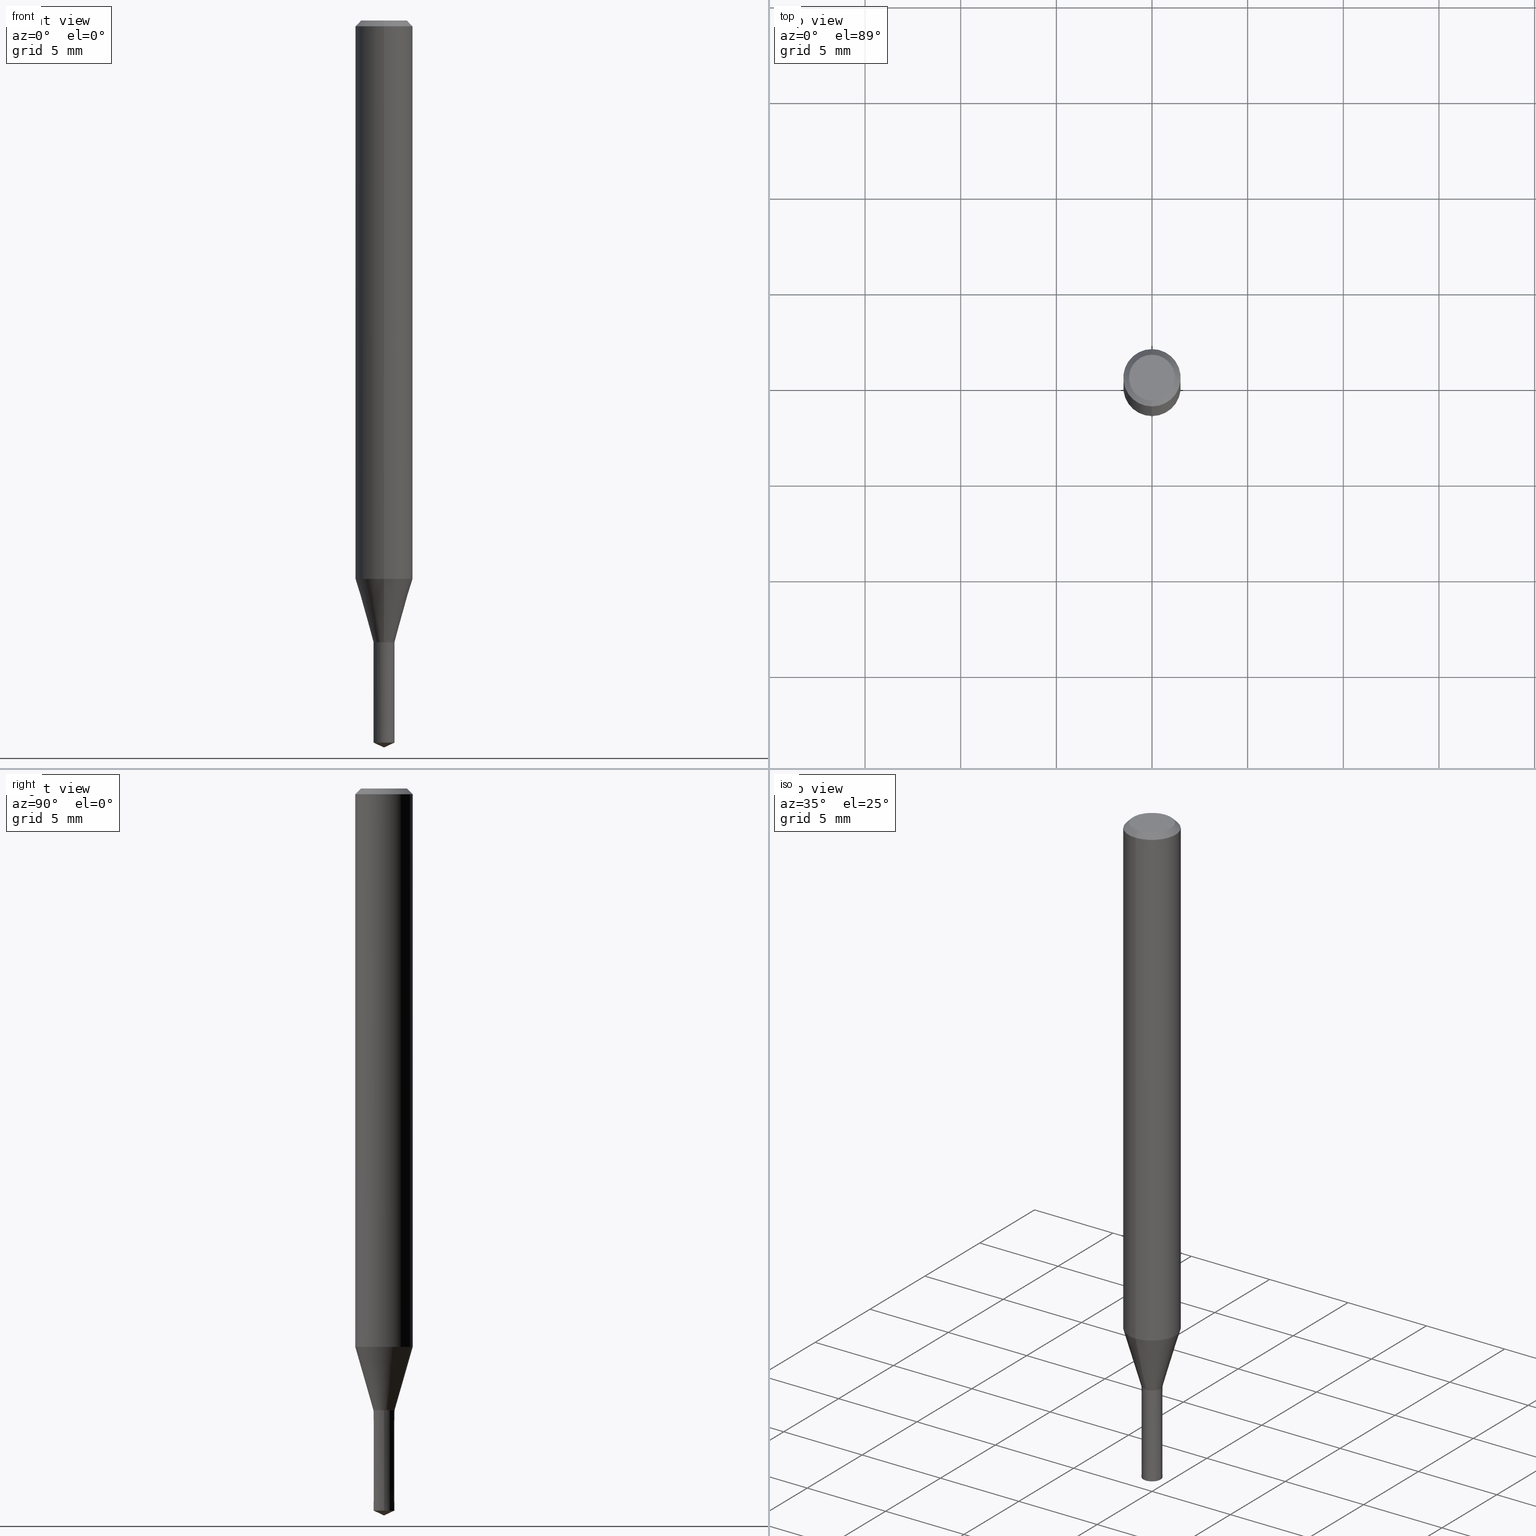
[diagram: canonical four-view strip — front | top / right | iso, engineering-drawing reading convention]
A machine part, canonical four-view strip (front | top / right | iso — engineering-drawing reading convention). The complete STEP part file that produces these views, byte-faithful:
ISO-10303-21;
HEADER;
FILE_DESCRIPTION(('no description'),'unknown implementation level');
FILE_NAME('UTDSX2110-055-Huellk.stp','  ',('CIMSOURCE GmbH'),('CADClick - KiM GmbH - www.kimweb.de'),'unknown preprocess','ACIS','unknown authorization');
FILE_SCHEMA(('automotive_design'));
ENDSEC;
DATA;
#1=MECHANICAL_DESIGN_GEOMETRIC_PRESENTATION_REPRESENTATION(' ',(#14,#15,#16,#17,#18,#19,#20,#21,#22,#23,#24,#25,#26,#27,#28,#29,#30,#31,#32,#33,#34,#35,#36,#37,#38,#39,#40,#41,#42,#43,#44,#45,#46,#47,#48,#49,#50,#51,#52,#53,#54,#55,#56,#57,#58,#59,#60,#61,#62,#63,#64,#65,#66,#67,#68,#69,#70,#71),#10);
#2=PRODUCT_DEFINITION_CONTEXT('',#72,'design');
#3=APPLICATION_PROTOCOL_DEFINITION('INTERNATIONAL STANDARD','automotive_design',1994,#72);
#4=PRODUCT_CATEGORY_RELATIONSHIP('NONE','NONE',#73,#74);
#5=SHAPE_DEFINITION_REPRESENTATION(#75,#76);
#6=PRODUCT_DEFINITION_CONTEXT('',#77,'design');
#7=APPLICATION_PROTOCOL_DEFINITION('INTERNATIONAL STANDARD','automotive_design',1994,#77);
#8=PRODUCT_CATEGORY_RELATIONSHIP('NONE','NONE',#78,#79);
#9=SHAPE_DEFINITION_REPRESENTATION(#80,#81);
#10= (GEOMETRIC_REPRESENTATION_CONTEXT(3)GLOBAL_UNCERTAINTY_ASSIGNED_CONTEXT((#84))GLOBAL_UNIT_ASSIGNED_CONTEXT((#86,#87,#88))REPRESENTATION_CONTEXT('NONE','WORKSPACE'));
#14=STYLED_ITEM('',(#90),#91);
#15=STYLED_ITEM('',(#92),#93);
#16=STYLED_ITEM('',(#94),#95);
#17=STYLED_ITEM('',(#96),#97);
#18=STYLED_ITEM('',(#98),#99);
#19=STYLED_ITEM('',(#100),#101);
#20=STYLED_ITEM('',(#102),#103);
#21=STYLED_ITEM('',(#104),#105);
#22=STYLED_ITEM('',(#106),#107);
#23=STYLED_ITEM('',(#108),#109);
#24=STYLED_ITEM('',(#110),#111);
#25=STYLED_ITEM('',(#112),#113);
#26=STYLED_ITEM('',(#114),#115);
#27=STYLED_ITEM('',(#116),#117);
#28=STYLED_ITEM('',(#118),#119);
#29=STYLED_ITEM('',(#120),#121);
#30=STYLED_ITEM('',(#122),#123);
#31=STYLED_ITEM('',(#124),#125);
#32=STYLED_ITEM('',(#126),#127);
#33=STYLED_ITEM('',(#128),#129);
#34=STYLED_ITEM('',(#130),#131);
#35=STYLED_ITEM('',(#132),#133);
#36=STYLED_ITEM('',(#134),#135);
#37=STYLED_ITEM('',(#136),#137);
#38=STYLED_ITEM('',(#138),#139);
#39=STYLED_ITEM('',(#140),#141);
#40=STYLED_ITEM('',(#142),#143);
#41=STYLED_ITEM('',(#144),#145);
#42=STYLED_ITEM('',(#146),#147);
#43=STYLED_ITEM('',(#148),#149);
#44=STYLED_ITEM('',(#150),#151);
#45=STYLED_ITEM('',(#152),#153);
#46=STYLED_ITEM('',(#154),#155);
#47=STYLED_ITEM('',(#156),#157);
#48=STYLED_ITEM('',(#158),#159);
#49=STYLED_ITEM('',(#160),#161);
#50=STYLED_ITEM('',(#162),#163);
#51=STYLED_ITEM('',(#164),#165);
#52=STYLED_ITEM('',(#166),#167);
#53=STYLED_ITEM('',(#168),#169);
#54=STYLED_ITEM('',(#170),#171);
#55=STYLED_ITEM('',(#172),#173);
#56=STYLED_ITEM('',(#174),#175);
#57=STYLED_ITEM('',(#176),#177);
#58=STYLED_ITEM('',(#178),#179);
#59=STYLED_ITEM('',(#180),#181);
#60=STYLED_ITEM('',(#182),#183);
#61=STYLED_ITEM('',(#184),#185);
#62=STYLED_ITEM('',(#186),#187);
#63=STYLED_ITEM('',(#188),#189);
#64=STYLED_ITEM('',(#190),#191);
#65=STYLED_ITEM('',(#192),#193);
#66=STYLED_ITEM('',(#194),#195);
#67=STYLED_ITEM('',(#196),#197);
#68=STYLED_ITEM('',(#198),#199);
#69=STYLED_ITEM('',(#200),#201);
#70=STYLED_ITEM('',(#202),#203);
#71=STYLED_ITEM('',(#204),#205);
#72=APPLICATION_CONTEXT(' ');
#73=PRODUCT_CATEGORY('part','NONE');
#74=PRODUCT_RELATED_PRODUCT_CATEGORY('detail',' ',(#206));
#75=PRODUCT_DEFINITION_SHAPE('NONE','NONE',#207);
#76=ADVANCED_BREP_SHAPE_REPRESENTATION('1',(#163,#208),#10);
#77=APPLICATION_CONTEXT(' ');
#78=PRODUCT_CATEGORY('part','NONE');
#79=PRODUCT_RELATED_PRODUCT_CATEGORY('detail',' ',(#209));
#80=PRODUCT_DEFINITION_SHAPE('NONE','NONE',#210);
#81=ADVANCED_BREP_SHAPE_REPRESENTATION('2',(#179,#211),#10);
#84=UNCERTAINTY_MEASURE_WITH_UNIT(LENGTH_MEASURE(1.0E-006),#86,'','');
#86= (CONVERSION_BASED_UNIT('MILLIMETRE',#214)LENGTH_UNIT()NAMED_UNIT(#217));
#87= (NAMED_UNIT(#219)PLANE_ANGLE_UNIT()SI_UNIT($,.RADIAN.));
#88= (NAMED_UNIT(#219)SOLID_ANGLE_UNIT()SI_UNIT($,.STERADIAN.));
#90=PRESENTATION_STYLE_ASSIGNMENT((#225));
#91=ADVANCED_FACE('',(#226),#227,.T.);
#92=PRESENTATION_STYLE_ASSIGNMENT((#228));
#93=EDGE_CURVE('',#201,#127,#229,.T.);
#94=PRESENTATION_STYLE_ASSIGNMENT((#230));
#95=VERTEX_POINT('',#231);
#96=PRESENTATION_STYLE_ASSIGNMENT((#232));
#97=VERTEX_POINT('',#233);
#98=PRESENTATION_STYLE_ASSIGNMENT((#234));
#99=VERTEX_POINT('',#235);
#100=PRESENTATION_STYLE_ASSIGNMENT((#236));
#101=ADVANCED_FACE('',(#237),#238,.T.);
#102=PRESENTATION_STYLE_ASSIGNMENT((#239));
#103=EDGE_CURVE('',#175,#123,#240,.T.);
#104=PRESENTATION_STYLE_ASSIGNMENT((#241));
#105=EDGE_CURVE('',#117,#153,#242,.T.);
#106=PRESENTATION_STYLE_ASSIGNMENT((#243));
#107=EDGE_CURVE('',#201,#99,#244,.T.);
#108=PRESENTATION_STYLE_ASSIGNMENT((#245));
#109=ADVANCED_FACE('',(#246),#247,.T.);
#110=PRESENTATION_STYLE_ASSIGNMENT((#248));
#111=VERTEX_POINT('',#249);
#112=PRESENTATION_STYLE_ASSIGNMENT((#250));
#113=ADVANCED_FACE('',(#251),#252,.T.);
#114=PRESENTATION_STYLE_ASSIGNMENT((#253));
#115=EDGE_CURVE('',#185,#149,#254,.T.);
#116=PRESENTATION_STYLE_ASSIGNMENT((#255));
#117=VERTEX_POINT('',#256);
#118=PRESENTATION_STYLE_ASSIGNMENT((#257));
#119=EDGE_CURVE('',#97,#127,#258,.T.);
#120=PRESENTATION_STYLE_ASSIGNMENT((#259));
#121=ADVANCED_FACE('',(#260),#261,.T.);
#122=PRESENTATION_STYLE_ASSIGNMENT((#262));
#123=VERTEX_POINT('',#263);
#124=PRESENTATION_STYLE_ASSIGNMENT((#264));
#125=EDGE_CURVE('',#153,#95,#265,.T.);
#126=PRESENTATION_STYLE_ASSIGNMENT((#266));
#127=VERTEX_POINT('',#267);
#128=PRESENTATION_STYLE_ASSIGNMENT((#268));
#129=ADVANCED_FACE('',(#269),#270,.T.);
#130=PRESENTATION_STYLE_ASSIGNMENT((#271));
#131=VERTEX_POINT('',#272);
#132=PRESENTATION_STYLE_ASSIGNMENT((#273));
#133=ADVANCED_FACE('',(#274),#275,.T.);
#134=PRESENTATION_STYLE_ASSIGNMENT((#276));
#135=ADVANCED_FACE('',(#277),#278,.T.);
#136=PRESENTATION_STYLE_ASSIGNMENT((#279));
#137=ADVANCED_FACE('',(#280),#281,.T.);
#138=PRESENTATION_STYLE_ASSIGNMENT((#282));
#139=VERTEX_POINT('',#283);
#140=PRESENTATION_STYLE_ASSIGNMENT((#284));
#141=EDGE_CURVE('',#99,#201,#285,.T.);
#142=PRESENTATION_STYLE_ASSIGNMENT((#286));
#143=EDGE_CURVE('',#145,#111,#287,.T.);
#144=PRESENTATION_STYLE_ASSIGNMENT((#288));
#145=VERTEX_POINT('',#289);
#146=PRESENTATION_STYLE_ASSIGNMENT((#290));
#147=EDGE_CURVE('',#175,#139,#291,.T.);
#148=PRESENTATION_STYLE_ASSIGNMENT((#292));
#149=VERTEX_POINT('',#293);
#150=PRESENTATION_STYLE_ASSIGNMENT((#294));
#151=EDGE_CURVE('',#95,#131,#295,.T.);
#152=PRESENTATION_STYLE_ASSIGNMENT((#296));
#153=VERTEX_POINT('',#297);
#154=PRESENTATION_STYLE_ASSIGNMENT((#298));
#155=EDGE_CURVE('',#111,#123,#299,.T.);
#156=PRESENTATION_STYLE_ASSIGNMENT((#300));
#157=ADVANCED_FACE('',(#301),#302,.T.);
#158=PRESENTATION_STYLE_ASSIGNMENT((#303));
#159=EDGE_CURVE('',#111,#139,#304,.T.);
#160=PRESENTATION_STYLE_ASSIGNMENT((#305));
#161=EDGE_CURVE('',#95,#201,#306,.T.);
#162=PRESENTATION_STYLE_ASSIGNMENT((#307));
#163=MANIFOLD_SOLID_BREP('1',#308);
#164=PRESENTATION_STYLE_ASSIGNMENT((#309));
#165=EDGE_CURVE('',#131,#117,#310,.T.);
#166=PRESENTATION_STYLE_ASSIGNMENT((#311));
#167=ADVANCED_FACE('',(#312),#313,.T.);
#168=PRESENTATION_STYLE_ASSIGNMENT((#314));
#169=ADVANCED_FACE('',(#315),#316,.T.);
#170=PRESENTATION_STYLE_ASSIGNMENT((#317));
#171=ADVANCED_FACE('',(#318),#319,.T.);
#172=PRESENTATION_STYLE_ASSIGNMENT((#320));
#173=ADVANCED_FACE('',(#321),#322,.T.);
#174=PRESENTATION_STYLE_ASSIGNMENT((#323));
#175=VERTEX_POINT('',#324);
#176=PRESENTATION_STYLE_ASSIGNMENT((#325));
#177=EDGE_CURVE('',#139,#111,#326,.T.);
#178=PRESENTATION_STYLE_ASSIGNMENT((#327));
#179=MANIFOLD_SOLID_BREP('2',#328);
#180=PRESENTATION_STYLE_ASSIGNMENT((#329));
#181=EDGE_CURVE('',#131,#95,#330,.T.);
#182=PRESENTATION_STYLE_ASSIGNMENT((#331));
#183=EDGE_CURVE('',#153,#117,#332,.T.);
#184=PRESENTATION_STYLE_ASSIGNMENT((#333));
#185=VERTEX_POINT('',#334);
#186=PRESENTATION_STYLE_ASSIGNMENT((#335));
#187=EDGE_CURVE('',#123,#175,#336,.T.);
#188=PRESENTATION_STYLE_ASSIGNMENT((#337));
#189=EDGE_CURVE('',#149,#185,#338,.T.);
#190=PRESENTATION_STYLE_ASSIGNMENT((#339));
#191=EDGE_CURVE('',#99,#131,#340,.T.);
#192=PRESENTATION_STYLE_ASSIGNMENT((#341));
#193=EDGE_CURVE('',#97,#99,#342,.T.);
#194=PRESENTATION_STYLE_ASSIGNMENT((#343));
#195=EDGE_CURVE('',#127,#185,#344,.T.);
#196=PRESENTATION_STYLE_ASSIGNMENT((#345));
#197=EDGE_CURVE('',#139,#145,#346,.T.);
#198=PRESENTATION_STYLE_ASSIGNMENT((#347));
#199=EDGE_CURVE('',#127,#97,#348,.T.);
#200=PRESENTATION_STYLE_ASSIGNMENT((#349));
#201=VERTEX_POINT('',#350);
#202=PRESENTATION_STYLE_ASSIGNMENT((#351));
#203=ADVANCED_FACE('',(#352),#353,.T.);
#204=PRESENTATION_STYLE_ASSIGNMENT((#354));
#205=EDGE_CURVE('',#149,#97,#355,.T.);
#206=PRODUCT('1','1','PART-1-DESC',(#356));
#207=PRODUCT_DEFINITION('NONE','NONE',#357,#2);
#208=AXIS2_PLACEMENT_3D('',#358,#359,#360);
#209=PRODUCT('2','2','PART-2-DESC',(#361));
#210=PRODUCT_DEFINITION('NONE','NONE',#362,#6);
#211=AXIS2_PLACEMENT_3D('',#363,#364,#365);
#214=LENGTH_MEASURE_WITH_UNIT(LENGTH_MEASURE(1.0),#366);
#217=DIMENSIONAL_EXPONENTS(1.0,0.0,0.0,0.0,0.0,0.0,0.0);
#219=DIMENSIONAL_EXPONENTS(0.0,0.0,0.0,0.0,0.0,0.0,0.0);
#225=SURFACE_STYLE_USAGE(.BOTH.,#367);
#226=FACE_OUTER_BOUND('',#368,.T.);
#227=CONICAL_SURFACE('',#369,1.35,0.785398163397447);
#228=CURVE_STYLE('',#370,POSITIVE_LENGTH_MEASURE(1.0E-006),#371);
#229=LINE('',#372,#373);
#230=POINT_STYLE(' ',#374,POSITIVE_LENGTH_MEASURE(1.0E-006),#375);
#231=CARTESIAN_POINT('',(0.0,1.5,-0.300000000000001));
#232=POINT_STYLE(' ',#376,POSITIVE_LENGTH_MEASURE(1.0E-006),#377);
#233=CARTESIAN_POINT('',(6.73533494602308E-017,-0.55,-32.4991339745962));
#234=POINT_STYLE(' ',#378,POSITIVE_LENGTH_MEASURE(1.0E-006),#379);
#235=CARTESIAN_POINT('',(1.83690953073357E-016,-1.5,-29.187));
#236=SURFACE_STYLE_USAGE(.BOTH.,#380);
#237=FACE_OUTER_BOUND('',#381,.T.);
#238=CONICAL_SURFACE('',#382,0.55025,0.52359877559836);
#239=CURVE_STYLE('',#383,POSITIVE_LENGTH_MEASURE(1.0E-006),#384);
#240=CIRCLE('',#385,0.551);
#241=CURVE_STYLE('',#386,POSITIVE_LENGTH_MEASURE(1.0E-006),#387);
#242=CIRCLE('',#388,1.2);
#243=CURVE_STYLE('',#389,POSITIVE_LENGTH_MEASURE(1.0E-006),#390);
#244=CIRCLE('',#391,1.5);
#245=SURFACE_STYLE_USAGE(.BOTH.,#392);
#246=FACE_OUTER_BOUND('',#393,.T.);
#247=CONICAL_SURFACE('',#394,1.35,0.785398163397447);
#248=POINT_STYLE(' ',#395,POSITIVE_LENGTH_MEASURE(1.0E-006),#396);
#249=CARTESIAN_POINT('',(0.55,6.73533494602308E-017,-37.74353079));
#250=SURFACE_STYLE_USAGE(.BOTH.,#397);
#251=FACE_OUTER_BOUND('',#398,.T.);
#252=CONICAL_SURFACE('',#399,1.025,0.279325455519513);
#253=CURVE_STYLE('',#400,POSITIVE_LENGTH_MEASURE(1.0E-006),#401);
#254=CIRCLE('',#402,0.5505);
#255=POINT_STYLE(' ',#403,POSITIVE_LENGTH_MEASURE(1.0E-006),#404);
#256=CARTESIAN_POINT('',(1.46952762458685E-016,-1.2,0.0));
#257=CURVE_STYLE('',#405,POSITIVE_LENGTH_MEASURE(1.0E-006),#406);
#258=CIRCLE('',#407,0.55);
#259=SURFACE_STYLE_USAGE(.BOTH.,#408);
#260=FACE_OUTER_BOUND('',#409,.T.);
#261=PLANE('',#410);
#262=POINT_STYLE(' ',#411,POSITIVE_LENGTH_MEASURE(1.0E-006),#412);
#263=CARTESIAN_POINT('',(0.551,6.7475810095613E-017,-32.5));
#264=CURVE_STYLE('',#413,POSITIVE_LENGTH_MEASURE(1.0E-006),#414);
#265=LINE('',#415,#416);
#266=POINT_STYLE(' ',#417,POSITIVE_LENGTH_MEASURE(1.0E-006),#418);
#267=CARTESIAN_POINT('',(0.0,0.55,-32.4991339745962));
#268=SURFACE_STYLE_USAGE(.BOTH.,#419);
#269=FACE_OUTER_BOUND('',#420,.T.);
#270=CONICAL_SURFACE('',#421,0.275,1.13446401676117);
#271=POINT_STYLE(' ',#422,POSITIVE_LENGTH_MEASURE(1.0E-006),#423);
#272=CARTESIAN_POINT('',(1.83690953073357E-016,-1.5,-0.300000000000001));
#273=SURFACE_STYLE_USAGE(.BOTH.,#424);
#274=FACE_OUTER_BOUND('',#425,.T.);
#275=CONICAL_SURFACE('',#426,0.5505,0.000190711188305317);
#276=SURFACE_STYLE_USAGE(.BOTH.,#427);
#277=FACE_OUTER_BOUND('',#428,.T.);
#278=CONICAL_SURFACE('',#429,1.025,0.279325455519513);
#279=SURFACE_STYLE_USAGE(.BOTH.,#430);
#280=FACE_OUTER_BOUND('',#431,.T.);
#281=CYLINDRICAL_SURFACE('',#432,1.5);
#282=POINT_STYLE(' ',#433,POSITIVE_LENGTH_MEASURE(1.0E-006),#434);
#283=CARTESIAN_POINT('',(-0.55,0.0,-37.74353079));
#284=CURVE_STYLE('',#435,POSITIVE_LENGTH_MEASURE(1.0E-006),#436);
#285=CIRCLE('',#437,1.5);
#286=CURVE_STYLE('',#438,POSITIVE_LENGTH_MEASURE(1.0E-006),#439);
#287=LINE('',#440,#441);
#288=POINT_STYLE(' ',#442,POSITIVE_LENGTH_MEASURE(1.0E-006),#443);
#289=CARTESIAN_POINT('',(0.0,0.0,-38.0));
#290=CURVE_STYLE('',#444,POSITIVE_LENGTH_MEASURE(1.0E-006),#445);
#291=LINE('',#446,#447);
#292=POINT_STYLE(' ',#448,POSITIVE_LENGTH_MEASURE(1.0E-006),#449);
#293=CARTESIAN_POINT('',(6.74145797779219E-017,-0.5505,-32.5));
#294=CURVE_STYLE('',#450,POSITIVE_LENGTH_MEASURE(1.0E-006),#451);
#295=CIRCLE('',#452,1.5);
#296=POINT_STYLE(' ',#453,POSITIVE_LENGTH_MEASURE(1.0E-006),#454);
#297=CARTESIAN_POINT('',(0.0,1.2,0.0));
#298=CURVE_STYLE('',#455,POSITIVE_LENGTH_MEASURE(1.0E-006),#456);
#299=LINE('',#457,#458);
#300=SURFACE_STYLE_USAGE(.BOTH.,#459);
#301=FACE_OUTER_BOUND('',#460,.T.);
#302=CONICAL_SURFACE('',#461,0.275,1.13446401676117);
#303=CURVE_STYLE('',#462,POSITIVE_LENGTH_MEASURE(1.0E-006),#463);
#304=CIRCLE('',#464,0.55);
#305=CURVE_STYLE('',#465,POSITIVE_LENGTH_MEASURE(1.0E-006),#466);
#306=LINE('',#467,#468);
#307=SURFACE_STYLE_USAGE(.BOTH.,#469);
#308=CLOSED_SHELL('',(#101,#135,#137,#109,#171,#91,#169,#113,#173,#121));
#309=CURVE_STYLE('',#470,POSITIVE_LENGTH_MEASURE(1.0E-006),#471);
#310=LINE('',#472,#473);
#311=SURFACE_STYLE_USAGE(.BOTH.,#474);
#312=FACE_OUTER_BOUND('',#475,.T.);
#313=PLANE('',#476);
#314=SURFACE_STYLE_USAGE(.BOTH.,#477);
#315=FACE_OUTER_BOUND('',#478,.T.);
#316=CYLINDRICAL_SURFACE('',#479,1.5);
#317=SURFACE_STYLE_USAGE(.BOTH.,#480);
#318=FACE_OUTER_BOUND('',#481,.T.);
#319=PLANE('',#482);
#320=SURFACE_STYLE_USAGE(.BOTH.,#483);
#321=FACE_OUTER_BOUND('',#484,.T.);
#322=CONICAL_SURFACE('',#485,0.55025,0.52359877559836);
#323=POINT_STYLE(' ',#486,POSITIVE_LENGTH_MEASURE(1.0E-006),#487);
#324=CARTESIAN_POINT('',(-0.551,0.0,-32.5));
#325=CURVE_STYLE('',#488,POSITIVE_LENGTH_MEASURE(1.0E-006),#489);
#326=CIRCLE('',#490,0.55);
#327=SURFACE_STYLE_USAGE(.BOTH.,#491);
#328=CLOSED_SHELL('',(#157,#203,#167,#133,#129));
#329=CURVE_STYLE('',#492,POSITIVE_LENGTH_MEASURE(1.0E-006),#493);
#330=CIRCLE('',#494,1.5);
#331=CURVE_STYLE('',#495,POSITIVE_LENGTH_MEASURE(1.0E-006),#496);
#332=CIRCLE('',#497,1.2);
#333=POINT_STYLE(' ',#498,POSITIVE_LENGTH_MEASURE(1.0E-006),#499);
#334=CARTESIAN_POINT('',(0.0,0.5505,-32.5));
#335=CURVE_STYLE('',#500,POSITIVE_LENGTH_MEASURE(1.0E-006),#501);
#336=CIRCLE('',#502,0.551);
#337=CURVE_STYLE('',#503,POSITIVE_LENGTH_MEASURE(1.0E-006),#504);
#338=CIRCLE('',#505,0.5505);
#339=CURVE_STYLE('',#506,POSITIVE_LENGTH_MEASURE(1.0E-006),#507);
#340=LINE('',#508,#509);
#341=CURVE_STYLE('',#510,POSITIVE_LENGTH_MEASURE(1.0E-006),#511);
#342=LINE('',#512,#513);
#343=CURVE_STYLE('',#514,POSITIVE_LENGTH_MEASURE(1.0E-006),#515);
#344=LINE('',#516,#517);
#345=CURVE_STYLE('',#518,POSITIVE_LENGTH_MEASURE(1.0E-006),#519);
#346=LINE('',#520,#521);
#347=CURVE_STYLE('',#522,POSITIVE_LENGTH_MEASURE(1.0E-006),#523);
#348=CIRCLE('',#524,0.55);
#349=POINT_STYLE(' ',#525,POSITIVE_LENGTH_MEASURE(1.0E-006),#526);
#350=CARTESIAN_POINT('',(0.0,1.5,-29.187));
#351=SURFACE_STYLE_USAGE(.BOTH.,#527);
#352=FACE_OUTER_BOUND('',#528,.T.);
#353=CONICAL_SURFACE('',#529,0.5505,0.000190711188305317);
#354=CURVE_STYLE('',#530,POSITIVE_LENGTH_MEASURE(1.0E-006),#531);
#355=LINE('',#532,#533);
#356=PRODUCT_CONTEXT('',#72,'mechanical');
#357=PRODUCT_DEFINITION_FORMATION_WITH_SPECIFIED_SOURCE(' ','NONE',#206,.NOT_KNOWN.);
#358=CARTESIAN_POINT('',(0.0,0.0,0.0));
#359=DIRECTION('',(0.0,0.0,1.0));
#360=DIRECTION('',(1.0,0.0,0.0));
#361=PRODUCT_CONTEXT('',#77,'mechanical');
#362=PRODUCT_DEFINITION_FORMATION_WITH_SPECIFIED_SOURCE(' ','NONE',#209,.NOT_KNOWN.);
#363=CARTESIAN_POINT('',(0.0,0.0,0.0));
#364=DIRECTION('',(0.0,0.0,1.0));
#365=DIRECTION('',(1.0,0.0,0.0));
#366= (NAMED_UNIT(#217)LENGTH_UNIT()SI_UNIT(.MILLI.,.METRE.));
#367=SURFACE_SIDE_STYLE('',(#535));
#368=EDGE_LOOP('',(#536,#537,#538,#539));
#369=AXIS2_PLACEMENT_3D('',#540,#541,#542);
#370=DRAUGHTING_PRE_DEFINED_CURVE_FONT('continuous');
#371=COLOUR_RGB('',0.498039215803146,0.498039215803146,0.498039215803146);
#372=CARTESIAN_POINT('',(-1.25522151266794E-016,1.025,-30.8430669872981));
#373=VECTOR('',#543,1.0);
#374=PRE_DEFINED_MARKER('');
#375=COLOUR_RGB('',0.498039215803146,0.498039215803146,0.498039215803146);
#376=PRE_DEFINED_MARKER('');
#377=COLOUR_RGB('',0.498039215803146,0.498039215803146,0.498039215803146);
#378=PRE_DEFINED_MARKER('');
#379=COLOUR_RGB('',0.498039215803146,0.498039215803146,0.498039215803146);
#380=SURFACE_SIDE_STYLE('',(#544));
#381=EDGE_LOOP('',(#545,#546,#547,#548));
#382=AXIS2_PLACEMENT_3D('',#549,#550,#551);
#383=DRAUGHTING_PRE_DEFINED_CURVE_FONT('continuous');
#384=COLOUR_RGB('',0.800000011920929,0.800000011920929,0.800000011920929);
#385=AXIS2_PLACEMENT_3D('',#552,#553,#554);
#386=DRAUGHTING_PRE_DEFINED_CURVE_FONT('continuous');
#387=COLOUR_RGB('',0.498039215803146,0.498039215803146,0.498039215803146);
#388=AXIS2_PLACEMENT_3D('',#555,#556,#557);
#389=DRAUGHTING_PRE_DEFINED_CURVE_FONT('continuous');
#390=COLOUR_RGB('',0.498039215803146,0.498039215803146,0.498039215803146);
#391=AXIS2_PLACEMENT_3D('',#558,#559,#560);
#392=SURFACE_SIDE_STYLE('',(#561));
#393=EDGE_LOOP('',(#562,#563,#564,#565));
#394=AXIS2_PLACEMENT_3D('',#566,#567,#568);
#395=PRE_DEFINED_MARKER('');
#396=COLOUR_RGB('',0.800000011920929,0.800000011920929,0.800000011920929);
#397=SURFACE_SIDE_STYLE('',(#569));
#398=EDGE_LOOP('',(#570,#571,#572,#573));
#399=AXIS2_PLACEMENT_3D('',#574,#575,#576);
#400=DRAUGHTING_PRE_DEFINED_CURVE_FONT('continuous');
#401=COLOUR_RGB('',0.498039215803146,0.498039215803146,0.498039215803146);
#402=AXIS2_PLACEMENT_3D('',#577,#578,#579);
#403=PRE_DEFINED_MARKER('');
#404=COLOUR_RGB('',0.498039215803146,0.498039215803146,0.498039215803146);
#405=DRAUGHTING_PRE_DEFINED_CURVE_FONT('continuous');
#406=COLOUR_RGB('',0.498039215803146,0.498039215803146,0.498039215803146);
#407=AXIS2_PLACEMENT_3D('',#580,#581,#582);
#408=SURFACE_SIDE_STYLE('',(#583));
#409=EDGE_LOOP('',(#584,#585));
#410=AXIS2_PLACEMENT_3D('',#586,#587,#588);
#411=PRE_DEFINED_MARKER('');
#412=COLOUR_RGB('',0.800000011920929,0.800000011920929,0.800000011920929);
#413=DRAUGHTING_PRE_DEFINED_CURVE_FONT('continuous');
#414=COLOUR_RGB('',0.498039215803146,0.498039215803146,0.498039215803146);
#415=CARTESIAN_POINT('',(-1.65321857766021E-016,1.35,-0.150000000000002));
#416=VECTOR('',#589,1.0);
#417=PRE_DEFINED_MARKER('');
#418=COLOUR_RGB('',0.498039215803146,0.498039215803146,0.498039215803146);
#419=SURFACE_SIDE_STYLE('',(#590));
#420=EDGE_LOOP('',(#591,#592,#593));
#421=AXIS2_PLACEMENT_3D('',#594,#595,#596);
#422=PRE_DEFINED_MARKER('');
#423=COLOUR_RGB('',0.498039215803146,0.498039215803146,0.498039215803146);
#424=SURFACE_SIDE_STYLE('',(#597));
#425=EDGE_LOOP('',(#598,#599,#600,#601));
#426=AXIS2_PLACEMENT_3D('',#602,#603,#604);
#427=SURFACE_SIDE_STYLE('',(#605));
#428=EDGE_LOOP('',(#606,#607,#608,#609));
#429=AXIS2_PLACEMENT_3D('',#610,#611,#612);
#430=SURFACE_SIDE_STYLE('',(#613));
#431=EDGE_LOOP('',(#614,#615,#616,#617));
#432=AXIS2_PLACEMENT_3D('',#618,#619,#620);
#433=PRE_DEFINED_MARKER('');
#434=COLOUR_RGB('',0.800000011920929,0.800000011920929,0.800000011920929);
#435=DRAUGHTING_PRE_DEFINED_CURVE_FONT('continuous');
#436=COLOUR_RGB('',0.498039215803146,0.498039215803146,0.498039215803146);
#437=AXIS2_PLACEMENT_3D('',#621,#622,#623);
#438=DRAUGHTING_PRE_DEFINED_CURVE_FONT('continuous');
#439=COLOUR_RGB('',0.800000011920929,0.800000011920929,0.800000011920929);
#440=CARTESIAN_POINT('',(0.275,3.36766747301154E-017,-37.871765395));
#441=VECTOR('',#624,1.0);
#442=PRE_DEFINED_MARKER('');
#443=COLOUR_RGB('',0.800000011920929,0.800000011920929,0.800000011920929);
#444=DRAUGHTING_PRE_DEFINED_CURVE_FONT('continuous');
#445=COLOUR_RGB('',0.800000011920929,0.800000011920929,0.800000011920929);
#446=CARTESIAN_POINT('',(-0.5505,-6.74145797779219E-017,-35.121765395));
#447=VECTOR('',#625,1.0);
#448=PRE_DEFINED_MARKER('');
#449=COLOUR_RGB('',0.498039215803146,0.498039215803146,0.498039215803146);
#450=DRAUGHTING_PRE_DEFINED_CURVE_FONT('continuous');
#451=COLOUR_RGB('',0.498039215803146,0.498039215803146,0.498039215803146);
#452=AXIS2_PLACEMENT_3D('',#626,#627,#628);
#453=PRE_DEFINED_MARKER('');
#454=COLOUR_RGB('',0.498039215803146,0.498039215803146,0.498039215803146);
#455=DRAUGHTING_PRE_DEFINED_CURVE_FONT('continuous');
#456=COLOUR_RGB('',0.800000011920929,0.800000011920929,0.800000011920929);
#457=CARTESIAN_POINT('',(0.5505,6.74145797779219E-017,-35.121765395));
#458=VECTOR('',#629,1.0);
#459=SURFACE_SIDE_STYLE('',(#630));
#460=EDGE_LOOP('',(#631,#632,#633));
#461=AXIS2_PLACEMENT_3D('',#634,#635,#636);
#462=DRAUGHTING_PRE_DEFINED_CURVE_FONT('continuous');
#463=COLOUR_RGB('',0.800000011920929,0.800000011920929,0.800000011920929);
#464=AXIS2_PLACEMENT_3D('',#637,#638,#639);
#465=DRAUGHTING_PRE_DEFINED_CURVE_FONT('continuous');
#466=COLOUR_RGB('',0.498039215803146,0.498039215803146,0.498039215803146);
#467=CARTESIAN_POINT('',(-1.83690953073357E-016,1.5,-14.7435));
#468=VECTOR('',#640,1.0);
#469=SURFACE_SIDE_STYLE('',(#641));
#470=DRAUGHTING_PRE_DEFINED_CURVE_FONT('continuous');
#471=COLOUR_RGB('',0.498039215803146,0.498039215803146,0.498039215803146);
#472=CARTESIAN_POINT('',(1.65321857766021E-016,-1.35,-0.150000000000002));
#473=VECTOR('',#642,1.0);
#474=SURFACE_SIDE_STYLE('',(#643));
#475=EDGE_LOOP('',(#644,#645));
#476=AXIS2_PLACEMENT_3D('',#646,#647,#648);
#477=SURFACE_SIDE_STYLE('',(#649));
#478=EDGE_LOOP('',(#650,#651,#652,#653));
#479=AXIS2_PLACEMENT_3D('',#654,#655,#656);
#480=SURFACE_SIDE_STYLE('',(#657));
#481=EDGE_LOOP('',(#658,#659));
#482=AXIS2_PLACEMENT_3D('',#660,#661,#662);
#483=SURFACE_SIDE_STYLE('',(#663));
#484=EDGE_LOOP('',(#664,#665,#666,#667));
#485=AXIS2_PLACEMENT_3D('',#668,#669,#670);
#486=PRE_DEFINED_MARKER('');
#487=COLOUR_RGB('',0.800000011920929,0.800000011920929,0.800000011920929);
#488=DRAUGHTING_PRE_DEFINED_CURVE_FONT('continuous');
#489=COLOUR_RGB('',0.800000011920929,0.800000011920929,0.800000011920929);
#490=AXIS2_PLACEMENT_3D('',#671,#672,#673);
#491=SURFACE_SIDE_STYLE('',(#674));
#492=DRAUGHTING_PRE_DEFINED_CURVE_FONT('continuous');
#493=COLOUR_RGB('',0.498039215803146,0.498039215803146,0.498039215803146);
#494=AXIS2_PLACEMENT_3D('',#675,#676,#677);
#495=DRAUGHTING_PRE_DEFINED_CURVE_FONT('continuous');
#496=COLOUR_RGB('',0.498039215803146,0.498039215803146,0.498039215803146);
#497=AXIS2_PLACEMENT_3D('',#678,#679,#680);
#498=PRE_DEFINED_MARKER('');
#499=COLOUR_RGB('',0.498039215803146,0.498039215803146,0.498039215803146);
#500=DRAUGHTING_PRE_DEFINED_CURVE_FONT('continuous');
#501=COLOUR_RGB('',0.800000011920929,0.800000011920929,0.800000011920929);
#502=AXIS2_PLACEMENT_3D('',#681,#682,#683);
#503=DRAUGHTING_PRE_DEFINED_CURVE_FONT('continuous');
#504=COLOUR_RGB('',0.498039215803146,0.498039215803146,0.498039215803146);
#505=AXIS2_PLACEMENT_3D('',#684,#685,#686);
#506=DRAUGHTING_PRE_DEFINED_CURVE_FONT('continuous');
#507=COLOUR_RGB('',0.498039215803146,0.498039215803146,0.498039215803146);
#508=CARTESIAN_POINT('',(1.83690953073357E-016,-1.5,-14.7435));
#509=VECTOR('',#687,1.0);
#510=DRAUGHTING_PRE_DEFINED_CURVE_FONT('continuous');
#511=COLOUR_RGB('',0.498039215803146,0.498039215803146,0.498039215803146);
#512=CARTESIAN_POINT('',(1.25522151266794E-016,-1.025,-30.8430669872981));
#513=VECTOR('',#688,1.0);
#514=DRAUGHTING_PRE_DEFINED_CURVE_FONT('continuous');
#515=COLOUR_RGB('',0.498039215803146,0.498039215803146,0.498039215803146);
#516=CARTESIAN_POINT('',(-6.73839646190763E-017,0.55025,-32.4995669872981));
#517=VECTOR('',#689,1.0);
#518=DRAUGHTING_PRE_DEFINED_CURVE_FONT('continuous');
#519=COLOUR_RGB('',0.800000011920929,0.800000011920929,0.800000011920929);
#520=CARTESIAN_POINT('',(-0.275,-3.36766747301154E-017,-37.871765395));
#521=VECTOR('',#690,1.0);
#522=DRAUGHTING_PRE_DEFINED_CURVE_FONT('continuous');
#523=COLOUR_RGB('',0.498039215803146,0.498039215803146,0.498039215803146);
#524=AXIS2_PLACEMENT_3D('',#691,#692,#693);
#525=PRE_DEFINED_MARKER('');
#526=COLOUR_RGB('',0.498039215803146,0.498039215803146,0.498039215803146);
#527=SURFACE_SIDE_STYLE('',(#694));
#528=EDGE_LOOP('',(#695,#696,#697,#698));
#529=AXIS2_PLACEMENT_3D('',#699,#700,#701);
#530=DRAUGHTING_PRE_DEFINED_CURVE_FONT('continuous');
#531=COLOUR_RGB('',0.498039215803146,0.498039215803146,0.498039215803146);
#532=CARTESIAN_POINT('',(6.73839646190763E-017,-0.55025,-32.4995669872981));
#533=VECTOR('',#702,1.0);
#535=SURFACE_STYLE_FILL_AREA(#703);
#536=ORIENTED_EDGE('',*,*,#125,.T.);
#537=ORIENTED_EDGE('',*,*,#181,.F.);
#538=ORIENTED_EDGE('',*,*,#165,.T.);
#539=ORIENTED_EDGE('',*,*,#105,.T.);
#540=CARTESIAN_POINT('',(0.0,0.0,-0.150000000000002));
#541=DIRECTION('',(0.0,-0.0,-1.0));
#542=DIRECTION('',(0.0,1.0,0.0));
#543=DIRECTION('',(3.37632924967849E-017,-0.275707311099597,-0.961241633828992));
#544=SURFACE_STYLE_FILL_AREA(#704);
#545=ORIENTED_EDGE('',*,*,#195,.F.);
#546=ORIENTED_EDGE('',*,*,#199,.T.);
#547=ORIENTED_EDGE('',*,*,#205,.F.);
#548=ORIENTED_EDGE('',*,*,#115,.F.);
#549=CARTESIAN_POINT('',(0.0,0.0,-32.4995669872981));
#550=DIRECTION('',(0.0,-0.0,-1.0));
#551=DIRECTION('',(0.0,1.0,0.0));
#552=CARTESIAN_POINT('',(0.0,0.0,-32.5));
#553=DIRECTION('',(0.0,0.0,-1.0));
#554=DIRECTION('',(-1.0,0.0,0.0));
#555=CARTESIAN_POINT('',(0.0,0.0,0.0));
#556=DIRECTION('',(0.0,0.0,-1.0));
#557=DIRECTION('',(0.0,1.0,0.0));
#558=CARTESIAN_POINT('',(0.0,0.0,-29.187));
#559=DIRECTION('',(0.0,0.0,-1.0));
#560=DIRECTION('',(0.0,1.0,0.0));
#561=SURFACE_STYLE_FILL_AREA(#705);
#562=ORIENTED_EDGE('',*,*,#125,.F.);
#563=ORIENTED_EDGE('',*,*,#183,.T.);
#564=ORIENTED_EDGE('',*,*,#165,.F.);
#565=ORIENTED_EDGE('',*,*,#151,.F.);
#566=CARTESIAN_POINT('',(0.0,0.0,-0.150000000000002));
#567=DIRECTION('',(0.0,-0.0,-1.0));
#568=DIRECTION('',(0.0,1.0,0.0));
#569=SURFACE_STYLE_FILL_AREA(#706);
#570=ORIENTED_EDGE('',*,*,#93,.T.);
#571=ORIENTED_EDGE('',*,*,#119,.F.);
#572=ORIENTED_EDGE('',*,*,#193,.T.);
#573=ORIENTED_EDGE('',*,*,#141,.T.);
#574=CARTESIAN_POINT('',(0.0,0.0,-30.8430669872981));
#575=DIRECTION('',(-0.0,-0.0,1.0));
#576=DIRECTION('',(0.0,1.0,0.0));
#577=CARTESIAN_POINT('',(0.0,0.0,-32.5));
#578=DIRECTION('',(0.0,0.0,-1.0));
#579=DIRECTION('',(0.0,1.0,0.0));
#580=CARTESIAN_POINT('',(0.0,0.0,-32.4991339745962));
#581=DIRECTION('',(0.0,0.0,-1.0));
#582=DIRECTION('',(0.0,1.0,0.0));
#583=SURFACE_STYLE_FILL_AREA(#707);
#584=ORIENTED_EDGE('',*,*,#115,.T.);
#585=ORIENTED_EDGE('',*,*,#189,.T.);
#586=CARTESIAN_POINT('',(0.0,0.27525,-32.5));
#587=DIRECTION('',(0.0,0.0,-1.0));
#588=DIRECTION('',(0.0,1.0,0.0));
#589=DIRECTION('',(-8.65927457071934E-017,0.707106781186546,-0.707106781186549));
#590=SURFACE_STYLE_FILL_AREA(#708);
#591=ORIENTED_EDGE('',*,*,#143,.T.);
#592=ORIENTED_EDGE('',*,*,#159,.T.);
#593=ORIENTED_EDGE('',*,*,#197,.T.);
#594=CARTESIAN_POINT('',(0.0,0.0,-37.871765395));
#595=DIRECTION('',(-0.0,-0.0,1.0));
#596=DIRECTION('',(-1.0,0.0,0.0));
#597=SURFACE_STYLE_FILL_AREA(#709);
#598=ORIENTED_EDGE('',*,*,#147,.T.);
#599=ORIENTED_EDGE('',*,*,#159,.F.);
#600=ORIENTED_EDGE('',*,*,#155,.T.);
#601=ORIENTED_EDGE('',*,*,#187,.T.);
#602=CARTESIAN_POINT('',(0.0,0.0,-35.121765395));
#603=DIRECTION('',(-0.0,-0.0,1.0));
#604=DIRECTION('',(-1.0,0.0,0.0));
#605=SURFACE_STYLE_FILL_AREA(#710);
#606=ORIENTED_EDGE('',*,*,#93,.F.);
#607=ORIENTED_EDGE('',*,*,#107,.T.);
#608=ORIENTED_EDGE('',*,*,#193,.F.);
#609=ORIENTED_EDGE('',*,*,#199,.F.);
#610=CARTESIAN_POINT('',(0.0,0.0,-30.8430669872981));
#611=DIRECTION('',(-0.0,-0.0,1.0));
#612=DIRECTION('',(0.0,1.0,0.0));
#613=SURFACE_STYLE_FILL_AREA(#711);
#614=ORIENTED_EDGE('',*,*,#161,.F.);
#615=ORIENTED_EDGE('',*,*,#151,.T.);
#616=ORIENTED_EDGE('',*,*,#191,.F.);
#617=ORIENTED_EDGE('',*,*,#107,.F.);
#618=CARTESIAN_POINT('',(0.0,0.0,-14.7435));
#619=DIRECTION('',(-0.0,-0.0,1.0));
#620=DIRECTION('',(0.0,1.0,0.0));
#621=CARTESIAN_POINT('',(0.0,0.0,-29.187));
#622=DIRECTION('',(0.0,0.0,-1.0));
#623=DIRECTION('',(0.0,1.0,0.0));
#624=DIRECTION('',(0.906307788289653,1.10987027605821E-016,0.422618259053626));
#625=DIRECTION('',(0.000190711187149265,2.33546131527998E-020,-0.999999981814621));
#626=CARTESIAN_POINT('',(0.0,0.0,-0.300000000000001));
#627=DIRECTION('',(0.0,0.0,-1.0));
#628=DIRECTION('',(0.0,1.0,0.0));
#629=DIRECTION('',(0.000190711187149265,2.33546131527998E-020,0.999999981814621));
#630=SURFACE_STYLE_FILL_AREA(#712);
#631=ORIENTED_EDGE('',*,*,#143,.F.);
#632=ORIENTED_EDGE('',*,*,#197,.F.);
#633=ORIENTED_EDGE('',*,*,#177,.T.);
#634=CARTESIAN_POINT('',(0.0,0.0,-37.871765395));
#635=DIRECTION('',(-0.0,-0.0,1.0));
#636=DIRECTION('',(-1.0,0.0,0.0));
#637=CARTESIAN_POINT('',(0.0,0.0,-37.74353079));
#638=DIRECTION('',(0.0,0.0,-1.0));
#639=DIRECTION('',(-1.0,0.0,0.0));
#640=DIRECTION('',(0.0,0.0,-1.0));
#641=SURFACE_STYLE_FILL_AREA(#713);
#642=DIRECTION('',(-8.65927457071934E-017,0.707106781186546,0.707106781186549));
#643=SURFACE_STYLE_FILL_AREA(#714);
#644=ORIENTED_EDGE('',*,*,#103,.F.);
#645=ORIENTED_EDGE('',*,*,#187,.F.);
#646=CARTESIAN_POINT('',(-0.2755,0.0,-32.5));
#647=DIRECTION('',(0.0,0.0,1.0));
#648=DIRECTION('',(1.0,0.0,0.0));
#649=SURFACE_STYLE_FILL_AREA(#715);
#650=ORIENTED_EDGE('',*,*,#161,.T.);
#651=ORIENTED_EDGE('',*,*,#141,.F.);
#652=ORIENTED_EDGE('',*,*,#191,.T.);
#653=ORIENTED_EDGE('',*,*,#181,.T.);
#654=CARTESIAN_POINT('',(0.0,0.0,-14.7435));
#655=DIRECTION('',(-0.0,-0.0,1.0));
#656=DIRECTION('',(0.0,1.0,0.0));
#657=SURFACE_STYLE_FILL_AREA(#716);
#658=ORIENTED_EDGE('',*,*,#183,.F.);
#659=ORIENTED_EDGE('',*,*,#105,.F.);
#660=CARTESIAN_POINT('',(0.0,0.6,0.0));
#661=DIRECTION('',(-0.0,0.0,1.0));
#662=DIRECTION('',(0.0,-1.0,0.0));
#663=SURFACE_STYLE_FILL_AREA(#717);
#664=ORIENTED_EDGE('',*,*,#195,.T.);
#665=ORIENTED_EDGE('',*,*,#189,.F.);
#666=ORIENTED_EDGE('',*,*,#205,.T.);
#667=ORIENTED_EDGE('',*,*,#119,.T.);
#668=CARTESIAN_POINT('',(0.0,0.0,-32.4995669872981));
#669=DIRECTION('',(0.0,-0.0,-1.0));
#670=DIRECTION('',(0.0,1.0,0.0));
#671=CARTESIAN_POINT('',(0.0,0.0,-37.74353079));
#672=DIRECTION('',(0.0,0.0,-1.0));
#673=DIRECTION('',(-1.0,0.0,0.0));
#674=SURFACE_STYLE_FILL_AREA(#718);
#675=CARTESIAN_POINT('',(0.0,0.0,-0.300000000000001));
#676=DIRECTION('',(0.0,0.0,-1.0));
#677=DIRECTION('',(0.0,1.0,0.0));
#678=CARTESIAN_POINT('',(0.0,0.0,0.0));
#679=DIRECTION('',(0.0,0.0,-1.0));
#680=DIRECTION('',(0.0,1.0,0.0));
#681=CARTESIAN_POINT('',(0.0,0.0,-32.5));
#682=DIRECTION('',(0.0,0.0,-1.0));
#683=DIRECTION('',(-1.0,0.0,0.0));
#684=CARTESIAN_POINT('',(0.0,0.0,-32.5));
#685=DIRECTION('',(0.0,0.0,-1.0));
#686=DIRECTION('',(0.0,1.0,0.0));
#687=DIRECTION('',(-0.0,-0.0,1.0));
#688=DIRECTION('',(3.37632924967849E-017,-0.275707311099597,0.961241633828992));
#689=DIRECTION('',(-6.12303176911254E-017,0.500000000000053,-0.866025403784408));
#690=DIRECTION('',(0.906307788289653,1.10987027605821E-016,-0.422618259053626));
#691=CARTESIAN_POINT('',(0.0,0.0,-32.4991339745962));
#692=DIRECTION('',(0.0,0.0,-1.0));
#693=DIRECTION('',(0.0,1.0,0.0));
#694=SURFACE_STYLE_FILL_AREA(#719);
#695=ORIENTED_EDGE('',*,*,#147,.F.);
#696=ORIENTED_EDGE('',*,*,#103,.T.);
#697=ORIENTED_EDGE('',*,*,#155,.F.);
#698=ORIENTED_EDGE('',*,*,#177,.F.);
#699=CARTESIAN_POINT('',(0.0,0.0,-35.121765395));
#700=DIRECTION('',(-0.0,-0.0,1.0));
#701=DIRECTION('',(-1.0,0.0,0.0));
#702=DIRECTION('',(-6.12303176911254E-017,0.500000000000053,0.866025403784408));
#703=FILL_AREA_STYLE('',(#720));
#704=FILL_AREA_STYLE('',(#721));
#705=FILL_AREA_STYLE('',(#722));
#706=FILL_AREA_STYLE('',(#723));
#707=FILL_AREA_STYLE('',(#724));
#708=FILL_AREA_STYLE('',(#725));
#709=FILL_AREA_STYLE('',(#726));
#710=FILL_AREA_STYLE('',(#727));
#711=FILL_AREA_STYLE('',(#728));
#712=FILL_AREA_STYLE('',(#729));
#713=FILL_AREA_STYLE('',(#730));
#714=FILL_AREA_STYLE('',(#731));
#715=FILL_AREA_STYLE('',(#732));
#716=FILL_AREA_STYLE('',(#733));
#717=FILL_AREA_STYLE('',(#734));
#718=FILL_AREA_STYLE('',(#735));
#719=FILL_AREA_STYLE('',(#736));
#720=FILL_AREA_STYLE_COLOUR('',#737);
#721=FILL_AREA_STYLE_COLOUR('',#738);
#722=FILL_AREA_STYLE_COLOUR('',#739);
#723=FILL_AREA_STYLE_COLOUR('',#740);
#724=FILL_AREA_STYLE_COLOUR('',#741);
#725=FILL_AREA_STYLE_COLOUR('',#742);
#726=FILL_AREA_STYLE_COLOUR('',#743);
#727=FILL_AREA_STYLE_COLOUR('',#744);
#728=FILL_AREA_STYLE_COLOUR('',#745);
#729=FILL_AREA_STYLE_COLOUR('',#746);
#730=FILL_AREA_STYLE_COLOUR('',#747);
#731=FILL_AREA_STYLE_COLOUR('',#748);
#732=FILL_AREA_STYLE_COLOUR('',#749);
#733=FILL_AREA_STYLE_COLOUR('',#750);
#734=FILL_AREA_STYLE_COLOUR('',#751);
#735=FILL_AREA_STYLE_COLOUR('',#752);
#736=FILL_AREA_STYLE_COLOUR('',#753);
#737=COLOUR_RGB('',0.498039215803146,0.498039215803146,0.498039215803146);
#738=COLOUR_RGB('',0.498039215803146,0.498039215803146,0.498039215803146);
#739=COLOUR_RGB('',0.498039215803146,0.498039215803146,0.498039215803146);
#740=COLOUR_RGB('',0.498039215803146,0.498039215803146,0.498039215803146);
#741=COLOUR_RGB('',0.498039215803146,0.498039215803146,0.498039215803146);
#742=COLOUR_RGB('',0.800000011920929,0.800000011920929,0.800000011920929);
#743=COLOUR_RGB('',0.800000011920929,0.800000011920929,0.800000011920929);
#744=COLOUR_RGB('',0.498039215803146,0.498039215803146,0.498039215803146);
#745=COLOUR_RGB('',0.498039215803146,0.498039215803146,0.498039215803146);
#746=COLOUR_RGB('',0.800000011920929,0.800000011920929,0.800000011920929);
#747=COLOUR_RGB('',0.498039215803146,0.498039215803146,0.498039215803146);
#748=COLOUR_RGB('',0.800000011920929,0.800000011920929,0.800000011920929);
#749=COLOUR_RGB('',0.498039215803146,0.498039215803146,0.498039215803146);
#750=COLOUR_RGB('',0.498039215803146,0.498039215803146,0.498039215803146);
#751=COLOUR_RGB('',0.498039215803146,0.498039215803146,0.498039215803146);
#752=COLOUR_RGB('',0.800000011920929,0.800000011920929,0.800000011920929);
#753=COLOUR_RGB('',0.800000011920929,0.800000011920929,0.800000011920929);
#754=AXIS2_PLACEMENT_3D('PCS',#755,#756,#757);
#755=CARTESIAN_POINT('',(0.0,0.0,0.0));
#756=DIRECTION('',(0.0,0.0,1.0));
#757=DIRECTION('',(1.0,0.0,0.0));
#758=AXIS2_PLACEMENT_3D('CIP',#759,#760,#761);
#759=CARTESIAN_POINT('',(0.0,0.0,-38.0));
#760=DIRECTION('',(0.0,0.0,1.0));
#761=DIRECTION('',(1.0,0.0,0.0));
#762=AXIS2_PLACEMENT_3D('CRP',#763,#764,#765);
#763=CARTESIAN_POINT('',(-0.55,0.0,-37.7435));
#764=DIRECTION('',(0.0,0.0,1.0));
#765=DIRECTION('',(1.0,0.0,0.0));
#766=AXIS2_PLACEMENT_3D('MCS',#767,#768,#769);
#767=CARTESIAN_POINT('',(0.0,0.0,-29.187));
#768=DIRECTION('',(0.0,0.0,1.0));
#769=DIRECTION('',(1.0,0.0,0.0));
#770=CONSTRUCTIVE_GEOMETRY_REPRESENTATION_RELATIONSHIP('coordinate systems',$,#76,#771);
#771=CONSTRUCTIVE_GEOMETRY_REPRESENTATION('coordinate systems',(#754,#758,#762,#766),#10);
ENDSEC;
END-ISO-10303-21;
